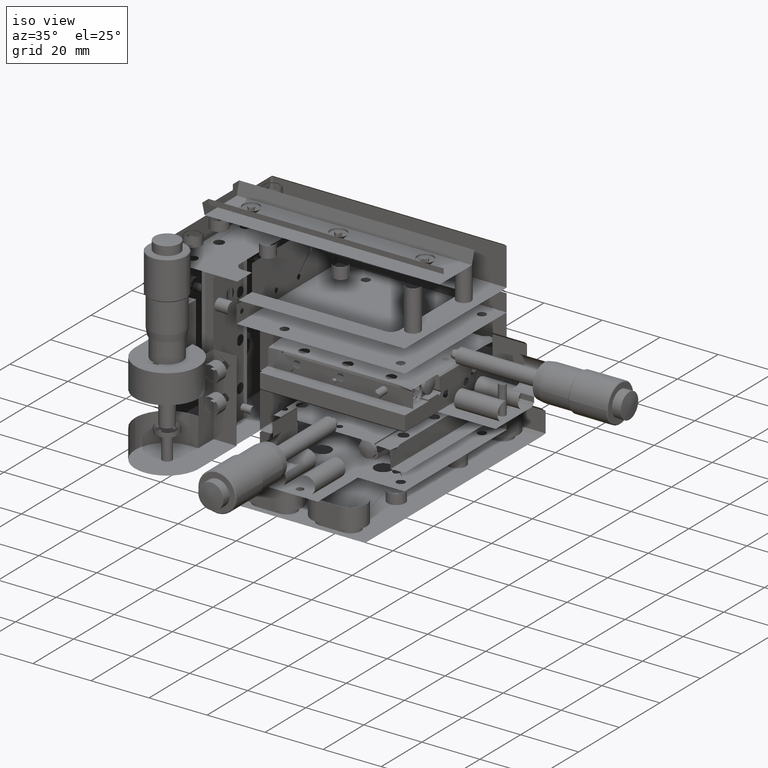
[diagram: clean part render]
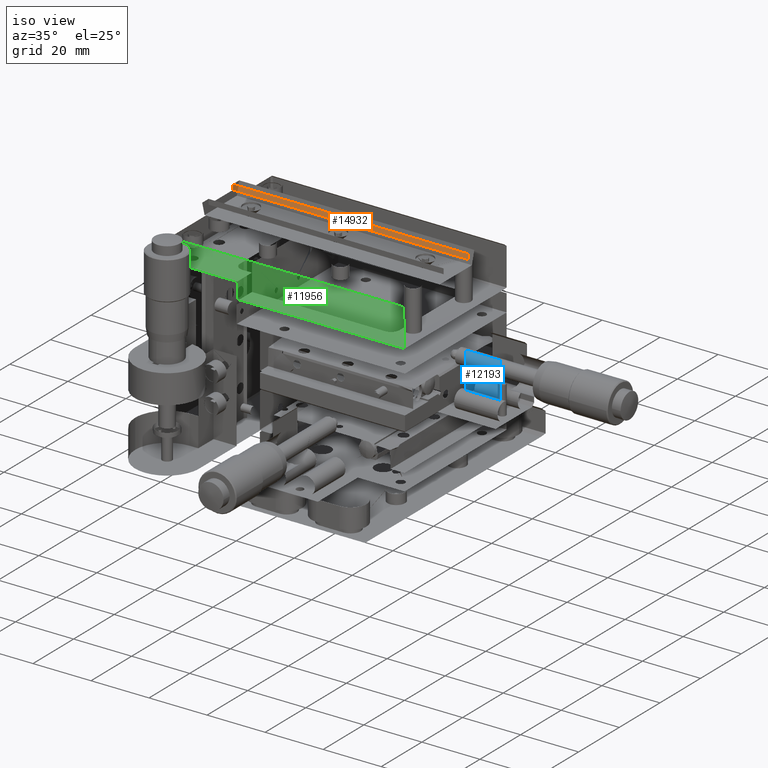
[diagram: same view with three faces highlighted in distinct colors, each labeled with its STEP entity id]
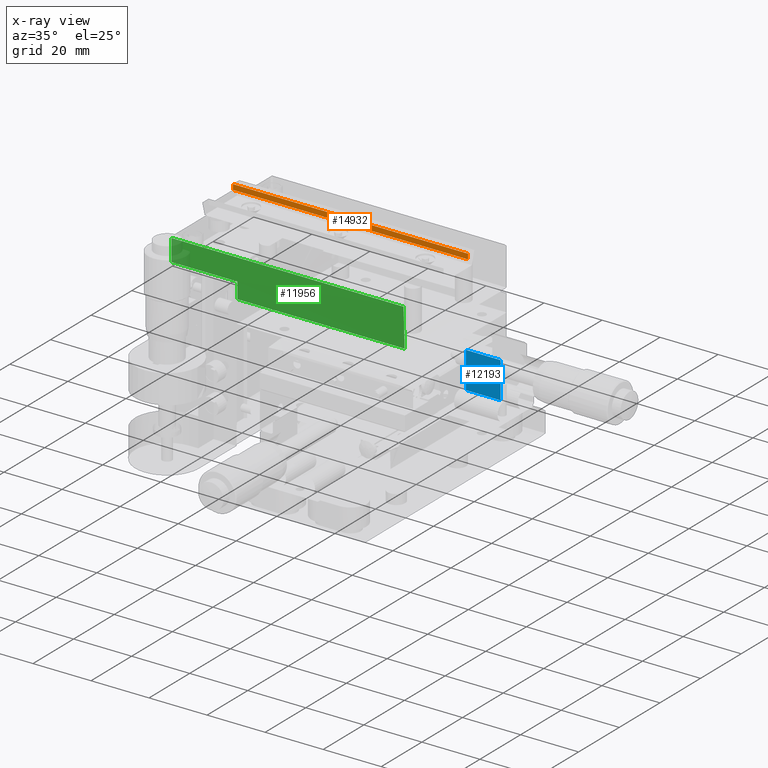
[diagram: x-ray of the same camera — body ghosted, the three highlighted faces saturated]
A machine part, iso view with three faces highlighted in distinct colors.
The next image is the same camera in x-ray (body ghosted, the three faces saturated) — at least one of them is partly hidden behind the body in this view.
Their STEP definitions:

[orange] entity #14932 — the highlighted face is a freeform B-spline surface patch.
#890 = CARTESIAN_POINT ( 'NONE',  ( 35.41923232115959763, 3.500717428134090259, 49.12274179201690316 ) ) ;
#1329 = VERTEX_POINT ( 'NONE', #42102 ) ;
#2362 = EDGE_LOOP ( 'NONE', ( #11421, #21400, #17201, #30467 ) ) ;
#4158 = VERTEX_POINT ( 'NONE', #18430 ) ;
#6132 = CARTESIAN_POINT ( 'NONE',  ( -45.58076767884040237, 3.500717428134090259, 47.32274179201689890 ) ) ;
#6290 = B_SPLINE_SURFACE_WITH_KNOTS ( 'NONE', 1, 1, ( 
 ( #31593, #28645 ),
 ( #35643, #11163 ) ),
 .UNSPECIFIED., .F., .F., .F.,
 ( 2, 2 ),
 ( 2, 2 ),
 ( 0.000000000000000000, 1.000000000000000000 ),
 ( 0.000000000000000000, 1.000000000000000000 ),
 .UNSPECIFIED. ) ;
#7268 = EDGE_CURVE ( 'NONE', #34319, #1329, #39981, .T. ) ;
#9177 = CARTESIAN_POINT ( 'NONE',  ( -45.58076767884040237, 3.500717428134090259, 49.12274179201690316 ) ) ;
#9374 = B_SPLINE_CURVE_WITH_KNOTS ( 'NONE', 1,
 ( #35324, #890 ),
 .UNSPECIFIED., .F., .F.,
 ( 2, 2 ),
 ( -1.000000000000000000, 0.000000000000000000 ),
 .UNSPECIFIED. ) ;
#11163 = CARTESIAN_POINT ( 'NONE',  ( -45.58076767884040237, 3.500717428134090259, 47.32274179201689890 ) ) ;
#11421 = ORIENTED_EDGE ( 'NONE', *, *, #44643, .T. ) ;
#14932 = ADVANCED_FACE ( 'NONE', ( #18640 ), #6290, .T. ) ;
#16195 = CARTESIAN_POINT ( 'NONE',  ( -45.58076767884040237, 3.500717428134090259, 47.32274179201689890 ) ) ;
#17201 = ORIENTED_EDGE ( 'NONE', *, *, #23632, .F. ) ;
#18430 = CARTESIAN_POINT ( 'NONE',  ( 35.41923232115959763, 3.500717428134090259, 49.12274179201690316 ) ) ;
#18640 = FACE_OUTER_BOUND ( 'NONE', #2362, .T. ) ;
#20854 = VERTEX_POINT ( 'NONE', #9177 ) ;
#21400 = ORIENTED_EDGE ( 'NONE', *, *, #26440, .T. ) ;
#23632 = EDGE_CURVE ( 'NONE', #1329, #4158, #43520, .T. ) ;
#24117 = B_SPLINE_CURVE_WITH_KNOTS ( 'NONE', 1,
 ( #26158, #32282 ),
 .UNSPECIFIED., .F., .F.,
 ( 2, 2 ),
 ( -1.000000000000000000, 0.000000000000000000 ),
 .UNSPECIFIED. ) ;
#26158 = CARTESIAN_POINT ( 'NONE',  ( -45.58076767884040237, 3.500717428134090259, 47.32274179201689890 ) ) ;
#26440 = EDGE_CURVE ( 'NONE', #20854, #4158, #9374, .T. ) ;
#28645 = CARTESIAN_POINT ( 'NONE',  ( -45.58076767884040237, 3.500717428134090259, 49.12274179201690316 ) ) ;
#30467 = ORIENTED_EDGE ( 'NONE', *, *, #7268, .F. ) ;
#31593 = CARTESIAN_POINT ( 'NONE',  ( 35.41923232115959763, 3.500717428134090259, 49.12274179201690316 ) ) ;
#32282 = CARTESIAN_POINT ( 'NONE',  ( -45.58076767884040237, 3.500717428134090259, 49.12274179201690316 ) ) ;
#33769 = CARTESIAN_POINT ( 'NONE',  ( 35.41923232115959763, 3.500717428134090259, 47.32274179201689890 ) ) ;
#34319 = VERTEX_POINT ( 'NONE', #16195 ) ;
#35324 = CARTESIAN_POINT ( 'NONE',  ( -45.58076767884040237, 3.500717428134090259, 49.12274179201690316 ) ) ;
#35643 = CARTESIAN_POINT ( 'NONE',  ( 35.41923232115959763, 3.500717428134090259, 47.32274179201689890 ) ) ;
#36271 = CARTESIAN_POINT ( 'NONE',  ( 35.41923232115959763, 3.500717428134090259, 47.32274179201689890 ) ) ;
#39681 = CARTESIAN_POINT ( 'NONE',  ( 35.41923232115959763, 3.500717428134090259, 49.12274179201690316 ) ) ;
#39981 = B_SPLINE_CURVE_WITH_KNOTS ( 'NONE', 1,
 ( #6132, #33769 ),
 .UNSPECIFIED., .F., .F.,
 ( 2, 2 ),
 ( 0.000000000000000000, 1.000000000000000000 ),
 .UNSPECIFIED. ) ;
#42102 = CARTESIAN_POINT ( 'NONE',  ( 35.41923232115959763, 3.500717428134090259, 47.32274179201689890 ) ) ;
#43520 = B_SPLINE_CURVE_WITH_KNOTS ( 'NONE', 1,
 ( #36271, #39681 ),
 .UNSPECIFIED., .F., .F.,
 ( 2, 2 ),
 ( 0.000000000000000000, 1.000000000000000000 ),
 .UNSPECIFIED. ) ;
#44643 = EDGE_CURVE ( 'NONE', #34319, #20854, #24117, .T. ) ;

[blue] entity #12193 — the highlighted face is a freeform B-spline surface patch.
#2885 = VERTEX_POINT ( 'NONE', #5266 ) ;
#4082 = EDGE_LOOP ( 'NONE', ( #34688, #24919, #33136, #17011 ) ) ;
#5266 = CARTESIAN_POINT ( 'NONE',  ( 43.41923232115959763, -8.999282571865949265, 26.07812786181560227 ) ) ;
#5938 = VERTEX_POINT ( 'NONE', #23898 ) ;
#9731 = EDGE_CURVE ( 'NONE', #23249, #29782, #18704, .T. ) ;
#11373 = EDGE_CURVE ( 'NONE', #5938, #23249, #30005, .T. ) ;
#11643 = CARTESIAN_POINT ( 'NONE',  ( 55.41923232115960474, -8.999282571865959923, 13.57812786181560050 ) ) ;
#12193 = ADVANCED_FACE ( 'NONE', ( #40673 ), #17036, .T. ) ;
#12598 = CARTESIAN_POINT ( 'NONE',  ( 43.41923232115959763, -8.999282571865949265, 26.07812786181560227 ) ) ;
#14378 = B_SPLINE_CURVE_WITH_KNOTS ( 'NONE', 1,
 ( #26868, #20521 ),
 .UNSPECIFIED., .F., .F.,
 ( 2, 2 ),
 ( -1.000000000000000000, 0.000000000000000000 ),
 .UNSPECIFIED. ) ;
#16507 = CARTESIAN_POINT ( 'NONE',  ( 55.41923232115960474, -8.999282571865959923, 26.07812786181560227 ) ) ;
#17011 = ORIENTED_EDGE ( 'NONE', *, *, #11373, .T. ) ;
#17036 = B_SPLINE_SURFACE_WITH_KNOTS ( 'NONE', 1, 1, ( 
 ( #12598, #27334 ),
 ( #37268, #33898 ) ),
 .UNSPECIFIED., .F., .F., .F.,
 ( 2, 2 ),
 ( 2, 2 ),
 ( 0.000000000000000000, 1.000000000000000000 ),
 ( 0.000000000000000000, 1.000000000000000000 ),
 .UNSPECIFIED. ) ;
#18704 = B_SPLINE_CURVE_WITH_KNOTS ( 'NONE', 1,
 ( #22208, #25169 ),
 .UNSPECIFIED., .F., .F.,
 ( 2, 2 ),
 ( -1.000000000000000000, 0.000000000000000000 ),
 .UNSPECIFIED. ) ;
#20521 = CARTESIAN_POINT ( 'NONE',  ( 43.41923232115959763, -8.999282571865949265, 26.07812786181560227 ) ) ;
#22208 = CARTESIAN_POINT ( 'NONE',  ( 55.41923232115960474, -8.999282571865959923, 13.57812786181560050 ) ) ;
#22754 = CARTESIAN_POINT ( 'NONE',  ( 55.41923232115960474, -8.999282571865959923, 13.57812786181560050 ) ) ;
#22955 = B_SPLINE_CURVE_WITH_KNOTS ( 'NONE', 1,
 ( #33092, #16507 ),
 .UNSPECIFIED., .F., .F.,
 ( 2, 2 ),
 ( 0.000000000000000000, 1.000000000000000000 ),
 .UNSPECIFIED. ) ;
#23249 = VERTEX_POINT ( 'NONE', #22754 ) ;
#23898 = CARTESIAN_POINT ( 'NONE',  ( 55.41923232115960474, -8.999282571865959923, 26.07812786181560227 ) ) ;
#24919 = ORIENTED_EDGE ( 'NONE', *, *, #43703, .T. ) ;
#25169 = CARTESIAN_POINT ( 'NONE',  ( 43.41923232115959763, -8.999282571865959923, 13.57812786181560050 ) ) ;
#26244 = EDGE_CURVE ( 'NONE', #2885, #5938, #22955, .T. ) ;
#26868 = CARTESIAN_POINT ( 'NONE',  ( 43.41923232115959763, -8.999282571865959923, 13.57812786181560050 ) ) ;
#27334 = CARTESIAN_POINT ( 'NONE',  ( 43.41923232115959763, -8.999282571865959923, 13.57812786181560050 ) ) ;
#29338 = CARTESIAN_POINT ( 'NONE',  ( 55.41923232115960474, -8.999282571865959923, 26.07812786181560227 ) ) ;
#29782 = VERTEX_POINT ( 'NONE', #35785 ) ;
#30005 = B_SPLINE_CURVE_WITH_KNOTS ( 'NONE', 1,
 ( #29338, #11643 ),
 .UNSPECIFIED., .F., .F.,
 ( 2, 2 ),
 ( 0.000000000000000000, 1.000000000000000000 ),
 .UNSPECIFIED. ) ;
#33092 = CARTESIAN_POINT ( 'NONE',  ( 43.41923232115959763, -8.999282571865949265, 26.07812786181560227 ) ) ;
#33136 = ORIENTED_EDGE ( 'NONE', *, *, #26244, .T. ) ;
#33898 = CARTESIAN_POINT ( 'NONE',  ( 55.41923232115960474, -8.999282571865959923, 13.57812786181560050 ) ) ;
#34688 = ORIENTED_EDGE ( 'NONE', *, *, #9731, .T. ) ;
#35785 = CARTESIAN_POINT ( 'NONE',  ( 43.41923232115959763, -8.999282571865959923, 13.57812786181560050 ) ) ;
#37268 = CARTESIAN_POINT ( 'NONE',  ( 55.41923232115960474, -8.999282571865959923, 26.07812786181560227 ) ) ;
#40673 = FACE_OUTER_BOUND ( 'NONE', #4082, .T. ) ;
#43703 = EDGE_CURVE ( 'NONE', #29782, #2885, #14378, .T. ) ;

[green] entity #11956 — the highlighted face is a freeform B-spline surface patch.
#327 = CARTESIAN_POINT ( 'NONE',  ( -22.38076767884039953, -27.49928257186589775, 31.32274179201699482 ) ) ;
#1506 = ORIENTED_EDGE ( 'NONE', *, *, #43814, .T. ) ;
#1991 = CARTESIAN_POINT ( 'NONE',  ( -45.08076767884040237, -27.49928257186589775, 36.82274179201690600 ) ) ;
#2972 = ORIENTED_EDGE ( 'NONE', *, *, #18038, .T. ) ;
#3357 = CARTESIAN_POINT ( 'NONE',  ( 34.91923232115959763, -27.49928257186589775, 44.32274179201689890 ) ) ;
#3413 = CARTESIAN_POINT ( 'NONE',  ( -22.38076767884039953, -27.49928257186589775, 36.82274179201690600 ) ) ;
#3428 = EDGE_CURVE ( 'NONE', #7927, #12946, #6270, .T. ) ;
#3672 = B_SPLINE_SURFACE_WITH_KNOTS ( 'NONE', 1, 1, ( 
 ( #34401, #28519 ),
 ( #3357, #42319 ) ),
 .UNSPECIFIED., .F., .F., .F.,
 ( 2, 2 ),
 ( 2, 2 ),
 ( 0.000000000000000000, 1.000000000000000000 ),
 ( 0.000000000000000000, 1.000000000000000000 ),
 .UNSPECIFIED. ) ;
#4028 = CARTESIAN_POINT ( 'NONE',  ( -22.38076767884039953, -27.49928257186589775, 36.82274179201690600 ) ) ;
#6270 = B_SPLINE_CURVE_WITH_KNOTS ( 'NONE', 1,
 ( #327, #20953 ),
 .UNSPECIFIED., .F., .F.,
 ( 2, 2 ),
 ( 0.000000000000000000, 1.000000000000000000 ),
 .UNSPECIFIED. ) ;
#7428 = B_SPLINE_CURVE_WITH_KNOTS ( 'NONE', 1,
 ( #16861, #26643 ),
 .UNSPECIFIED., .F., .F.,
 ( 2, 2 ),
 ( 0.000000000000000000, 1.000000000000000000 ),
 .UNSPECIFIED. ) ;
#7927 = VERTEX_POINT ( 'NONE', #24372 ) ;
#9599 = VERTEX_POINT ( 'NONE', #41255 ) ;
#10918 = CARTESIAN_POINT ( 'NONE',  ( -45.08076767884040237, -27.49928257186589775, 44.32274179201689890 ) ) ;
#11626 = B_SPLINE_CURVE_WITH_KNOTS ( 'NONE', 1,
 ( #19149, #15492 ),
 .UNSPECIFIED., .F., .F.,
 ( 2, 2 ),
 ( 0.000000000000000000, 1.000000000000000000 ),
 .UNSPECIFIED. ) ;
#11956 = ADVANCED_FACE ( 'NONE', ( #27626 ), #3672, .T. ) ;
#12946 = VERTEX_POINT ( 'NONE', #3413 ) ;
#14425 = CARTESIAN_POINT ( 'NONE',  ( -31.78076767884040166, -27.49928257186589775, 36.82274179201690600 ) ) ;
#14532 = ORIENTED_EDGE ( 'NONE', *, *, #41991, .T. ) ;
#15492 = CARTESIAN_POINT ( 'NONE',  ( 34.91923232115959763, -27.49928257186589775, 44.32274179201689890 ) ) ;
#16674 = EDGE_LOOP ( 'NONE', ( #30270, #29125, #27505, #1506, #2972, #36698, #14532 ) ) ;
#16861 = CARTESIAN_POINT ( 'NONE',  ( -45.08076767884040237, -27.49928257186589775, 36.82274179201690600 ) ) ;
#17526 = VERTEX_POINT ( 'NONE', #44610 ) ;
#17559 = CARTESIAN_POINT ( 'NONE',  ( -31.78076767884040166, -27.49928257186589775, 36.82274179201690600 ) ) ;
#18038 = EDGE_CURVE ( 'NONE', #44063, #9599, #11626, .T. ) ;
#19149 = CARTESIAN_POINT ( 'NONE',  ( -45.08076767884040237, -27.49928257186589775, 44.32274179201689890 ) ) ;
#19184 = CARTESIAN_POINT ( 'NONE',  ( 34.91923232115959763, -27.49928257186589775, 31.32274179201699482 ) ) ;
#19461 = B_SPLINE_CURVE_WITH_KNOTS ( 'NONE', 1,
 ( #4028, #14425 ),
 .UNSPECIFIED., .F., .F.,
 ( 2, 2 ),
 ( 0.000000000000000000, 0.4140969162995594699 ),
 .UNSPECIFIED. ) ;
#20953 = CARTESIAN_POINT ( 'NONE',  ( -22.38076767884039953, -27.49928257186589775, 36.82274179201690600 ) ) ;
#21513 = EDGE_CURVE ( 'NONE', #12946, #32149, #19461, .T. ) ;
#21611 = EDGE_CURVE ( 'NONE', #9599, #17526, #32942, .T. ) ;
#24280 = B_SPLINE_CURVE_WITH_KNOTS ( 'NONE', 1,
 ( #38334, #34961 ),
 .UNSPECIFIED., .F., .F.,
 ( 2, 2 ),
 ( 0.4140969162995594699, 1.000000000000000000 ),
 .UNSPECIFIED. ) ;
#24372 = CARTESIAN_POINT ( 'NONE',  ( -22.38076767884039953, -27.49928257186589775, 31.32274179201699482 ) ) ;
#26581 = VERTEX_POINT ( 'NONE', #1991 ) ;
#26643 = CARTESIAN_POINT ( 'NONE',  ( -45.08076767884040237, -27.49928257186589775, 44.32274179201689890 ) ) ;
#27505 = ORIENTED_EDGE ( 'NONE', *, *, #29230, .T. ) ;
#27595 = B_SPLINE_CURVE_WITH_KNOTS ( 'NONE', 1,
 ( #34329, #39658 ),
 .UNSPECIFIED., .F., .F.,
 ( 2, 2 ),
 ( 0.000000000000000000, 1.000000000000000000 ),
 .UNSPECIFIED. ) ;
#27626 = FACE_OUTER_BOUND ( 'NONE', #16674, .T. ) ;
#28519 = CARTESIAN_POINT ( 'NONE',  ( -45.08076767884040237, -27.49928257186589775, 31.32274179201699482 ) ) ;
#29125 = ORIENTED_EDGE ( 'NONE', *, *, #21513, .T. ) ;
#29230 = EDGE_CURVE ( 'NONE', #32149, #26581, #24280, .T. ) ;
#30270 = ORIENTED_EDGE ( 'NONE', *, *, #3428, .T. ) ;
#32149 = VERTEX_POINT ( 'NONE', #17559 ) ;
#32942 = B_SPLINE_CURVE_WITH_KNOTS ( 'NONE', 1,
 ( #40016, #19184 ),
 .UNSPECIFIED., .F., .F.,
 ( 2, 2 ),
 ( 0.000000000000000000, 1.000000000000000000 ),
 .UNSPECIFIED. ) ;
#34329 = CARTESIAN_POINT ( 'NONE',  ( 34.91923232115959763, -27.49928257186589775, 31.32274179201699482 ) ) ;
#34401 = CARTESIAN_POINT ( 'NONE',  ( -45.08076767884040237, -27.49928257186589775, 44.32274179201689890 ) ) ;
#34961 = CARTESIAN_POINT ( 'NONE',  ( -45.08076767884040237, -27.49928257186589775, 36.82274179201690600 ) ) ;
#36698 = ORIENTED_EDGE ( 'NONE', *, *, #21611, .T. ) ;
#38334 = CARTESIAN_POINT ( 'NONE',  ( -31.78076767884040166, -27.49928257186589775, 36.82274179201690600 ) ) ;
#39658 = CARTESIAN_POINT ( 'NONE',  ( -22.38076767884039953, -27.49928257186589775, 31.32274179201699482 ) ) ;
#40016 = CARTESIAN_POINT ( 'NONE',  ( 34.91923232115959763, -27.49928257186589775, 44.32274179201689890 ) ) ;
#41255 = CARTESIAN_POINT ( 'NONE',  ( 34.91923232115959763, -27.49928257186589775, 44.32274179201689890 ) ) ;
#41991 = EDGE_CURVE ( 'NONE', #17526, #7927, #27595, .T. ) ;
#42319 = CARTESIAN_POINT ( 'NONE',  ( 34.91923232115959763, -27.49928257186589775, 31.32274179201699482 ) ) ;
#43814 = EDGE_CURVE ( 'NONE', #26581, #44063, #7428, .T. ) ;
#44063 = VERTEX_POINT ( 'NONE', #10918 ) ;
#44610 = CARTESIAN_POINT ( 'NONE',  ( 35.08589898782625482, -27.16594923853254784, 31.15607512535024881 ) ) ;